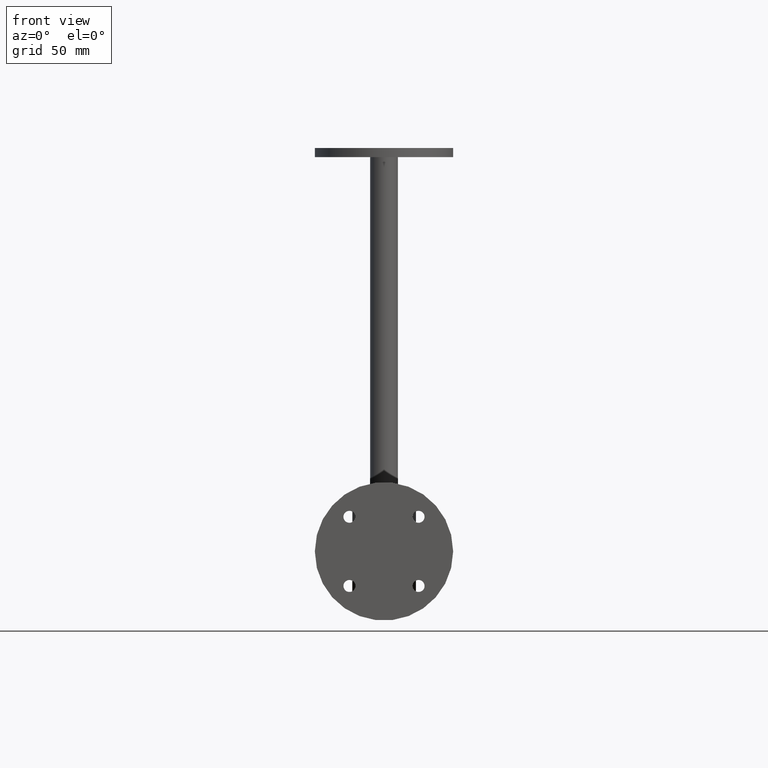
[diagram: clean part render]
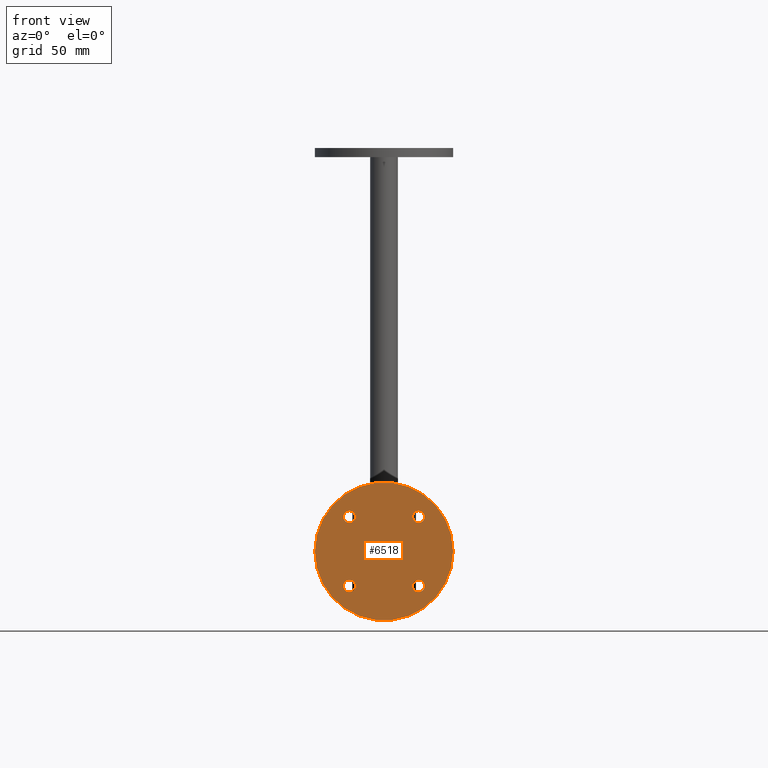
[diagram: same view with one face highlighted and labeled with its STEP entity id]
A machine part, front view. The second image highlights one B-rep face of the part: STEP entity #6518.
In plain terms, the highlighted planar face has unit normal (0, 1, 0).
Its self-contained STEP definition (entity closure, byte-faithful):
#257 = EDGE_CURVE ( 'NONE', #4224, #4224, #10823, .T. ) ;
#637 = DIRECTION ( 'NONE',  ( 0.000000000000000000, 1.000000000000000000, 0.000000000000000000 ) ) ;
#710 = CARTESIAN_POINT ( 'NONE',  ( 0.000000000000000000, 0.000000000000000000, 30.00000000000000000 ) ) ;
#883 = FACE_BOUND ( 'NONE', #5603, .T. ) ;
#1035 = CIRCLE ( 'NONE', #10711, 30.00000000000000000 ) ;
#1132 = VERTEX_POINT ( 'NONE', #11383 ) ;
#1892 = DIRECTION ( 'NONE',  ( 0.000000000000000000, 1.000000000000000000, 0.000000000000000000 ) ) ;
#2083 = CARTESIAN_POINT ( 'NONE',  ( -15.00000000000000000, -3.469446951953614189E-15, 15.00000000000000000 ) ) ;
#2249 = DIRECTION ( 'NONE',  ( -0.000000000000000000, 1.000000000000000000, -0.000000000000000000 ) ) ;
#2422 = CARTESIAN_POINT ( 'NONE',  ( -15.00000000000000000, -3.469446951953614189E-15, -15.00000000000000000 ) ) ;
#2435 = FACE_BOUND ( 'NONE', #3764, .T. ) ;
#2649 = ORIENTED_EDGE ( 'NONE', *, *, #10328, .T. ) ;
#2739 = CIRCLE ( 'NONE', #10622, 2.600000000000012079 ) ;
#2808 = EDGE_LOOP ( 'NONE', ( #2649 ) ) ;
#3764 = EDGE_LOOP ( 'NONE', ( #9412 ) ) ;
#3982 = FACE_BOUND ( 'NONE', #2808, .T. ) ;
#4224 = VERTEX_POINT ( 'NONE', #9406 ) ;
#4691 = DIRECTION ( 'NONE',  ( -0.000000000000000000, 1.000000000000000000, -0.000000000000000000 ) ) ;
#4920 = EDGE_LOOP ( 'NONE', ( #6575 ) ) ;
#5111 = CIRCLE ( 'NONE', #10783, 2.600000000000012079 ) ;
#5138 = ORIENTED_EDGE ( 'NONE', *, *, #8807, .T. ) ;
#5528 = CARTESIAN_POINT ( 'NONE',  ( 15.00000000000000178, -3.469446951953614189E-15, 17.60000000000001208 ) ) ;
#5603 = EDGE_LOOP ( 'NONE', ( #5138 ) ) ;
#5606 = VERTEX_POINT ( 'NONE', #5528 ) ;
#5663 = FACE_BOUND ( 'NONE', #7842, .T. ) ;
#6069 = EDGE_CURVE ( 'NONE', #1132, #1132, #5111, .T. ) ;
#6132 = DIRECTION ( 'NONE',  ( -0.000000000000000000, 1.000000000000000000, -0.000000000000000000 ) ) ;
#6281 = AXIS2_PLACEMENT_3D ( 'NONE', #6607, #4691, #7517 ) ;
#6307 = DIRECTION ( 'NONE',  ( 0.000000000000000000, 0.000000000000000000, 1.000000000000000000 ) ) ;
#6387 = VERTEX_POINT ( 'NONE', #710 ) ;
#6518 = ADVANCED_FACE ( 'NONE', ( #883, #5663, #2435, #3982, #6907 ), #6928, .F. ) ;
#6575 = ORIENTED_EDGE ( 'NONE', *, *, #9329, .F. ) ;
#6607 = CARTESIAN_POINT ( 'NONE',  ( 15.00000000000000178, -3.469446951953614189E-15, -15.00000000000000000 ) ) ;
#6907 = FACE_OUTER_BOUND ( 'NONE', #4920, .T. ) ;
#6928 = PLANE ( 'NONE',  #7014 ) ;
#7014 = AXIS2_PLACEMENT_3D ( 'NONE', #7770, #1892, #7898 ) ;
#7140 = DIRECTION ( 'NONE',  ( 0.000000000000000000, 0.000000000000000000, 1.000000000000000000 ) ) ;
#7491 = CARTESIAN_POINT ( 'NONE',  ( -15.00000000000000000, -3.469446951953614189E-15, 17.60000000000001208 ) ) ;
#7517 = DIRECTION ( 'NONE',  ( 0.000000000000000000, 0.000000000000000000, 1.000000000000000000 ) ) ;
#7579 = AXIS2_PLACEMENT_3D ( 'NONE', #9278, #12068, #8163 ) ;
#7770 = CARTESIAN_POINT ( 'NONE',  ( 0.000000000000000000, 0.000000000000000000, 0.000000000000000000 ) ) ;
#7842 = EDGE_LOOP ( 'NONE', ( #12173 ) ) ;
#7898 = DIRECTION ( 'NONE',  ( 0.000000000000000000, -0.000000000000000000, 1.000000000000000000 ) ) ;
#8163 = DIRECTION ( 'NONE',  ( 0.000000000000000000, 0.000000000000000000, 1.000000000000000000 ) ) ;
#8440 = CARTESIAN_POINT ( 'NONE',  ( 0.000000000000000000, 0.000000000000000000, 0.000000000000000000 ) ) ;
#8807 = EDGE_CURVE ( 'NONE', #5606, #5606, #11773, .T. ) ;
#9278 = CARTESIAN_POINT ( 'NONE',  ( 15.00000000000000178, -3.469446951953614189E-15, 15.00000000000000000 ) ) ;
#9329 = EDGE_CURVE ( 'NONE', #6387, #6387, #1035, .T. ) ;
#9406 = CARTESIAN_POINT ( 'NONE',  ( 15.00000000000000178, -3.469446951953614189E-15, -12.39999999999998970 ) ) ;
#9412 = ORIENTED_EDGE ( 'NONE', *, *, #6069, .T. ) ;
#10181 = VERTEX_POINT ( 'NONE', #7491 ) ;
#10328 = EDGE_CURVE ( 'NONE', #10181, #10181, #2739, .T. ) ;
#10622 = AXIS2_PLACEMENT_3D ( 'NONE', #2083, #6132, #7140 ) ;
#10711 = AXIS2_PLACEMENT_3D ( 'NONE', #8440, #637, #11484 ) ;
#10783 = AXIS2_PLACEMENT_3D ( 'NONE', #2422, #2249, #6307 ) ;
#10823 = CIRCLE ( 'NONE', #6281, 2.600000000000010303 ) ;
#11383 = CARTESIAN_POINT ( 'NONE',  ( -15.00000000000000000, -3.469446951953614189E-15, -12.39999999999998792 ) ) ;
#11484 = DIRECTION ( 'NONE',  ( 0.000000000000000000, 0.000000000000000000, 1.000000000000000000 ) ) ;
#11773 = CIRCLE ( 'NONE', #7579, 2.600000000000012079 ) ;
#12068 = DIRECTION ( 'NONE',  ( -0.000000000000000000, 1.000000000000000000, -0.000000000000000000 ) ) ;
#12173 = ORIENTED_EDGE ( 'NONE', *, *, #257, .T. ) ;